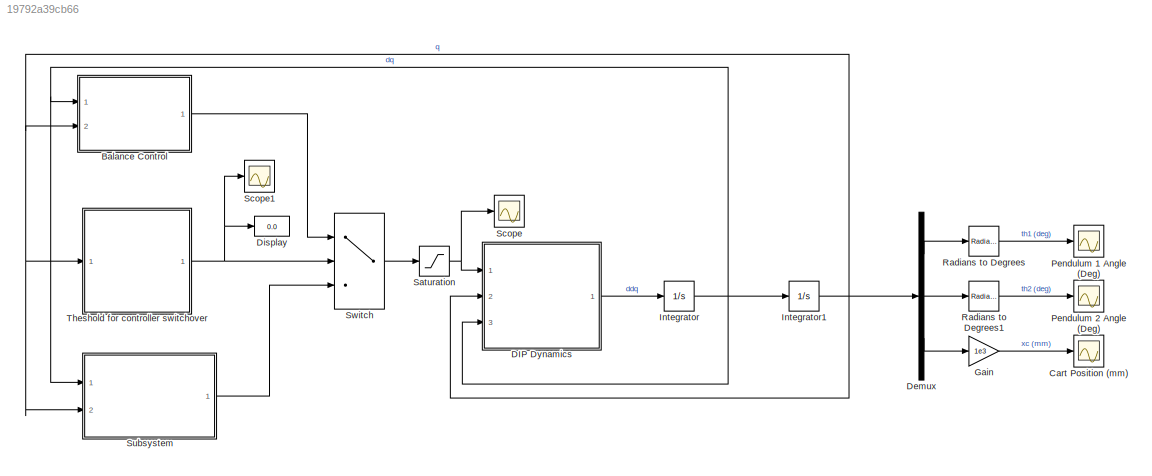
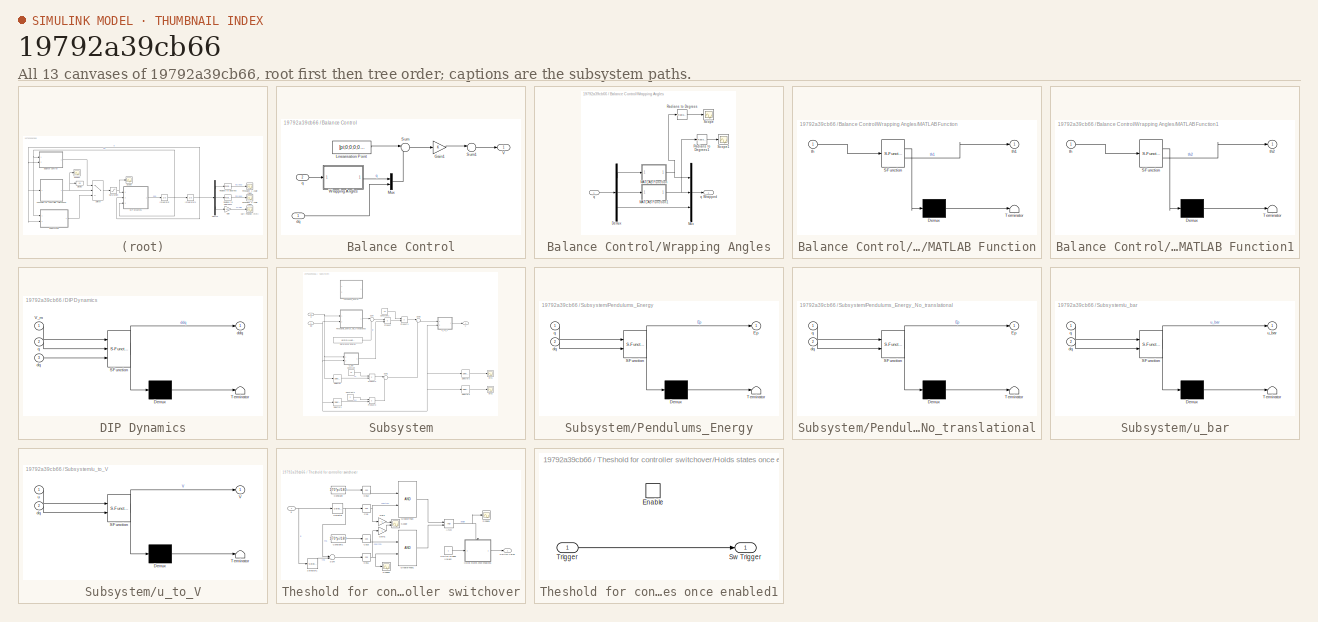
[diagram: thumbnail index - all 13 canvases of the model, root first then tree order]
MODEL slx_19792a39cb66
KIND model
CONFIG AbsTol = auto
CONFIG EnableMultiTasking = off
CONFIG FixedStep = 0.002
CONFIG MaxStep = auto
CONFIG MinStep = auto
CONFIG RelTol = 1e-3
CONFIG SampleTimeConstraint = Unconstrained
CONFIG SolverName = ode4
CONFIG StartTime = 0.0
CONFIG StopTime = 10
BLOCK [SubSystem] Balance Control
  Ports = [2, 1]
  RequestExecContextInheritance = off
BLOCK [Gain] Balance Control/Gain1
  Gain = K
  Multiplication = Matrix(K*u)
BLOCK [Constant] Balance Control/Linearisation Point
  Value = [pi;0;0;0;0;0]
BLOCK [Mux] Balance Control/Mux
  DisplayOption = bar
  Inputs = 2
  Ports = [2, 1]
BLOCK [Sum] Balance Control/Sum
  Inputs = |-+
  Ports = [2, 1]
BLOCK [Sum] Balance Control/Sum1
  Inputs = |-+
  Ports = [2, 1]
BLOCK [Outport] Balance Control/V
BLOCK [SubSystem] Balance Control/Wrapping Angles
  Ports = [1, 1]
  RequestExecContextInheritance = off
BLOCK [Demux] Balance Control/Wrapping Angles/Demux
  Outputs = 3
  Ports = [1, 3]
BLOCK [SubSystem] Balance Control/Wrapping Angles/MATLAB Function
  ErrorFcn = Stateflow.Translate.translate
  PermitHierarchicalResolution = ExplicitOnly
  Ports = [1, 1]
  RequestExecContextInheritance = off
  SFBlockType = MATLAB Function
  TreatAsAtomicUnit = on
BLOCK [Demux] Balance Control/Wrapping Angles/MATLAB Function/ Demux 
  Outputs = 1
  Ports = [1, 1]
BLOCK [S-Function] Balance Control/Wrapping Angles/MATLAB Function/ SFunction 
  EnableBusSupport = on
  FunctionName = sf_sfun
  PortCounts = [1 2]
  Ports = [1, 2]
  SFcnIsStateOwnerBlock = off
  SFunctionDeploymentMode = off
  Tag = Stateflow S-Function 5
BLOCK [Terminator] Balance Control/Wrapping Angles/MATLAB Function/ Terminator 
BLOCK [Inport] Balance Control/Wrapping Angles/MATLAB Function/th
BLOCK [Outport] Balance Control/Wrapping Angles/MATLAB Function/th1
BLOCK [SubSystem] Balance Control/Wrapping Angles/MATLAB Function1
  ErrorFcn = Stateflow.Translate.translate
  PermitHierarchicalResolution = ExplicitOnly
  Ports = [1, 1]
  RequestExecContextInheritance = off
  SFBlockType = MATLAB Function
  TreatAsAtomicUnit = on
BLOCK [Demux] Balance Control/Wrapping Angles/MATLAB Function1/ Demux 
  Outputs = 1
  Ports = [1, 1]
BLOCK [S-Function] Balance Control/Wrapping Angles/MATLAB Function1/ SFunction 
  EnableBusSupport = on
  FunctionName = sf_sfun
  PortCounts = [1 2]
  Ports = [1, 2]
  SFcnIsStateOwnerBlock = off
  SFunctionDeploymentMode = off
  Tag = Stateflow S-Function 6
BLOCK [Terminator] Balance Control/Wrapping Angles/MATLAB Function1/ Terminator 
BLOCK [Inport] Balance Control/Wrapping Angles/MATLAB Function1/th
BLOCK [Outport] Balance Control/Wrapping Angles/MATLAB Function1/th2
BLOCK [Mux] Balance Control/Wrapping Angles/Mux
  DisplayOption = bar
  Inputs = 3
  Ports = [3, 1]
BLOCK [Reference] Balance Control/Wrapping Angles/Radians to Degrees  REF=simulink_extras/Transformations/Radians
to Degrees
  Ports = [1, 1]
  SourceBlock = simulink_extras/Transformations/Radians\nto Degrees
  SourceProductBaseCode = SL
  SourceType = RadiansToDegrees
BLOCK [Reference] Balance Control/Wrapping Angles/Radians to Degrees1  REF=simulink_extras/Transformations/Radians
to Degrees
  Ports = [1, 1]
  SourceBlock = simulink_extras/Transformations/Radians\nto Degrees
  SourceProductBaseCode = SL
  SourceType = RadiansToDegrees
BLOCK [Scope] Balance Control/Wrapping Angles/Scope
  Floating = off
  NumInputPorts = 1
  Ports = [1]
  ScopeSpecificationString = Simulink.scopes.TimeScopeBlockCfg('CurrentConfiguration', extmgr.ConfigurationSet(extmgr.Configuration('Core','General UI',true),extmgr.Configuration('Core','Source UI',true),extmgr.Configuration('Sources','WiredSimulink',true,'DataLoggingVariableName','th1_W','DataLogging',true,'DataLoggingSaveFormat','Array'),extmgr.Configuration('Visuals','Time Domain',true,'SerializedDisplays',{struct('MinYLim...<+1460ch>
BLOCK [Scope] Balance Control/Wrapping Angles/Scope1
  Floating = off
  NumInputPorts = 1
  Ports = [1]
  ScopeSpecificationString = Simulink.scopes.TimeScopeBlockCfg('CurrentConfiguration', extmgr.ConfigurationSet(extmgr.Configuration('Core','General UI',true),extmgr.Configuration('Core','Source UI',true),extmgr.Configuration('Sources','WiredSimulink',true,'DataLoggingVariableName','th2_W','DataLogging',true,'DataLoggingSaveFormat','Array'),extmgr.Configuration('Visuals','Time Domain',true,'SerializedDisplays',{struct('MinYLim...<+1461ch>
BLOCK [Inport] Balance Control/Wrapping Angles/q
BLOCK [Outport] Balance Control/Wrapping Angles/q Wrapped
BLOCK [Inport] Balance Control/dq
BLOCK [Inport] Balance Control/q
  Port = 2
BLOCK [Scope] Cart Position (mm)
  Floating = off
  NumInputPorts = 1
  Ports = [1]
  ScopeSpecificationString = Simulink.scopes.TimeScopeBlockCfg('CurrentConfiguration', extmgr.ConfigurationSet(extmgr.Configuration('Core','General UI',true),extmgr.Configuration('Core','Source UI',true),extmgr.Configuration('Sources','WiredSimulink',true,'DataLoggingVariableName','xc_SIM','DataLogging',true,'DataLoggingSaveFormat','Array'),extmgr.Configuration('Visuals','Time Domain',true,'SerializedDisplays',{struct('MinYLi...<+1838ch>
BLOCK [SubSystem] DIP Dynamics
  ErrorFcn = Stateflow.Translate.translate
  PermitHierarchicalResolution = ExplicitOnly
  Ports = [3, 1]
  RequestExecContextInheritance = off
  SFBlockType = MATLAB Function
  TreatAsAtomicUnit = on
BLOCK [Demux] DIP Dynamics/ Demux 
  Outputs = 1
  Ports = [1, 1]
BLOCK [S-Function] DIP Dynamics/ SFunction 
  EnableBusSupport = on
  FunctionName = sf_sfun
  PortCounts = [3 2]
  Ports = [3, 2]
  SFcnIsStateOwnerBlock = off
  SFunctionDeploymentMode = off
  Tag = Stateflow S-Function 8
BLOCK [Terminator] DIP Dynamics/ Terminator 
BLOCK [Inport] DIP Dynamics/V_m
BLOCK [Outport] DIP Dynamics/ddq
BLOCK [Inport] DIP Dynamics/dq
  Port = 3
BLOCK [Inport] DIP Dynamics/q
  Port = 2
BLOCK [Demux] Demux
  Outputs = 3
  Ports = [1, 3]
BLOCK [Display] Display
  Decimation = 1
  Ports = [1]
BLOCK [Gain] Gain
  Gain = 1e3
BLOCK [Integrator] Integrator
  InitialCondition = [0 0 0]
  Ports = [1, 1]
BLOCK [Integrator] Integrator1
  InitialCondition = [5*pi/180 0*pi/180 0]
  Ports = [1, 1]
BLOCK [Scope] Pendulum 1 Angle (Deg)
  Floating = off
  NumInputPorts = 1
  Ports = [1]
  ScopeSpecificationString = Simulink.scopes.TimeScopeBlockCfg('CurrentConfiguration', extmgr.ConfigurationSet(extmgr.Configuration('Core','General UI',true),extmgr.Configuration('Core','Source UI',true),extmgr.Configuration('Sources','WiredSimulink',true,'DataLoggingVariableName','th1_SIM','DataLogging',true,'DataLoggingSaveFormat','Array'),extmgr.Configuration('Visuals','Time Domain',true,'SerializedDisplays',{struct('MinYL...<+1463ch>
BLOCK [Scope] Pendulum 2 Angle (Deg)
  Floating = off
  NumInputPorts = 1
  Ports = [1]
  ScopeSpecificationString = Simulink.scopes.TimeScopeBlockCfg('CurrentConfiguration', extmgr.ConfigurationSet(extmgr.Configuration('Core','General UI',true),extmgr.Configuration('Core','Source UI',true),extmgr.Configuration('Sources','WiredSimulink',true,'DataLogging',true,'DataLoggingVariableName','th2_SIM','DataLoggingSaveFormat','Array'),extmgr.Configuration('Visuals','Time Domain',true,'SerializedDisplays',{struct('MinYL...<+1486ch>
BLOCK [Reference] Radians to Degrees  REF=simulink_extras/Transformations/Radians
to Degrees
  Ports = [1, 1]
  SourceBlock = simulink_extras/Transformations/Radians\nto Degrees
  SourceProductBaseCode = SL
  SourceType = RadiansToDegrees
BLOCK [Reference] Radians to Degrees1  REF=simulink_extras/Transformations/Radians
to Degrees
  Ports = [1, 1]
  SourceBlock = simulink_extras/Transformations/Radians\nto Degrees
  SourceProductBaseCode = SL
  SourceType = RadiansToDegrees
BLOCK [Saturate] Saturation
  LowerLimit = -24
  UpperLimit = 24
BLOCK [Scope] Scope
  Floating = off
  NumInputPorts = 1
  Ports = [1]
  ScopeSpecificationString = Simulink.scopes.TimeScopeBlockCfg('CurrentConfiguration', extmgr.ConfigurationSet(extmgr.Configuration('Core','General UI',true),extmgr.Configuration('Core','Source UI',true),extmgr.Configuration('Sources','WiredSimulink',true,'DataLoggingVariableName','ScopeData11'),extmgr.Configuration('Visuals','Time Domain',true,'SerializedDisplays',{struct('MinYLimReal','-30.00000','MaxYLimReal','30.00000','Y...<+1376ch>
BLOCK [Scope] Scope1
  Floating = off
  NumInputPorts = 1
  Ports = [1]
  ScopeSpecificationString = Simulink.scopes.TimeScopeBlockCfg('CurrentConfiguration', extmgr.ConfigurationSet(extmgr.Configuration('Core','General UI',true),extmgr.Configuration('Core','Source UI',true),extmgr.Configuration('Sources','WiredSimulink',true,'DataLoggingVariableName','s_SIM','DataLogging',true,'DataLoggingSaveFormat','Array'),extmgr.Configuration('Visuals','Time Domain',true,'SerializedDisplays',{struct('MinYLim...<+1709ch>
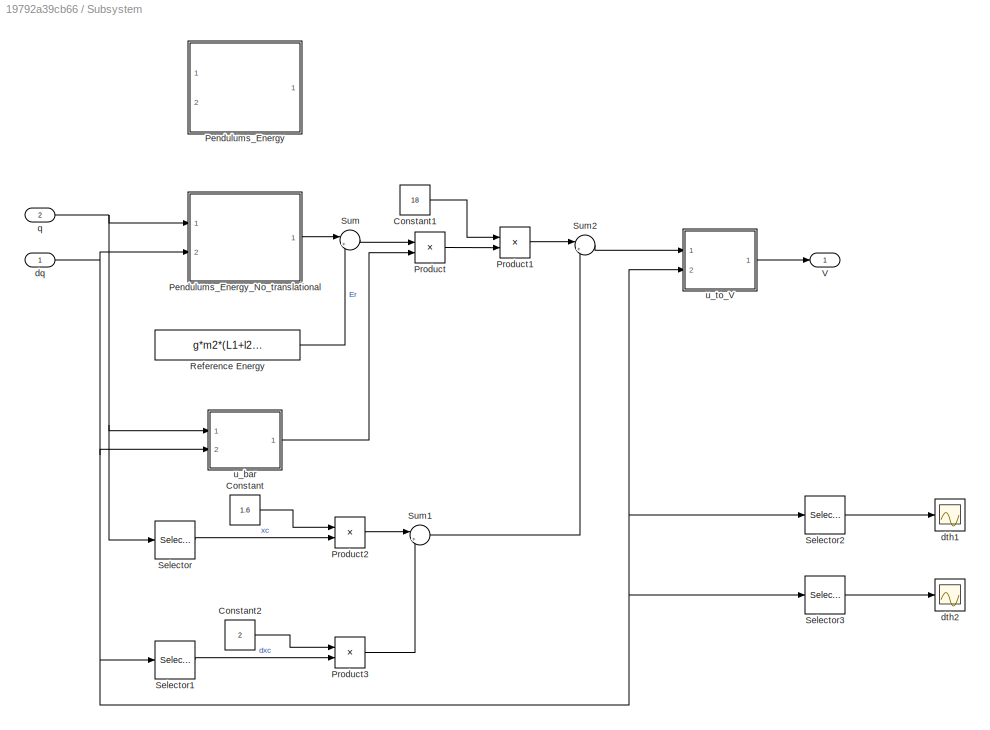
BLOCK [SubSystem] Subsystem
  Ports = [2, 1]
  RequestExecContextInheritance = off
BLOCK [Constant] Subsystem/Constant
  Value = 1.6
BLOCK [Constant] Subsystem/Constant1
  Value = 18
BLOCK [Constant] Subsystem/Constant2
  Value = 2
BLOCK [SubSystem] Subsystem/Pendulums_Energy
  Commented = on
  ErrorFcn = Stateflow.Translate.translate
  PermitHierarchicalResolution = ExplicitOnly
  Ports = [2, 1]
  RequestExecContextInheritance = off
  SFBlockType = MATLAB Function
  TreatAsAtomicUnit = on
BLOCK [Demux] Subsystem/Pendulums_Energy/ Demux 
  Outputs = 1
  Ports = [1, 1]
BLOCK [S-Function] Subsystem/Pendulums_Energy/ SFunction 
  EnableBusSupport = on
  FunctionName = sf_sfun
  PortCounts = [2 2]
  Ports = [2, 2]
  SFcnIsStateOwnerBlock = off
  SFunctionDeploymentMode = off
  Tag = Stateflow S-Function 2
BLOCK [Terminator] Subsystem/Pendulums_Energy/ Terminator 
BLOCK [Outport] Subsystem/Pendulums_Energy/Ep
BLOCK [Inport] Subsystem/Pendulums_Energy/dq
  Port = 2
BLOCK [Inport] Subsystem/Pendulums_Energy/q
BLOCK [SubSystem] Subsystem/Pendulums_Energy_No_translational
  ErrorFcn = Stateflow.Translate.translate
  PermitHierarchicalResolution = ExplicitOnly
  Ports = [2, 1]
  RequestExecContextInheritance = off
  SFBlockType = MATLAB Function
  TreatAsAtomicUnit = on
BLOCK [Demux] Subsystem/Pendulums_Energy_No_translational/ Demux 
  Outputs = 1
  Ports = [1, 1]
BLOCK [S-Function] Subsystem/Pendulums_Energy_No_translational/ SFunction 
  EnableBusSupport = on
  FunctionName = sf_sfun
  PortCounts = [2 2]
  Ports = [2, 2]
  SFcnIsStateOwnerBlock = off
  SFunctionDeploymentMode = off
  Tag = Stateflow S-Function 1
BLOCK [Terminator] Subsystem/Pendulums_Energy_No_translational/ Terminator 
BLOCK [Outport] Subsystem/Pendulums_Energy_No_translational/Ep
BLOCK [Inport] Subsystem/Pendulums_Energy_No_translational/dq
  Port = 2
BLOCK [Inport] Subsystem/Pendulums_Energy_No_translational/q
BLOCK [Product] Subsystem/Product
  Ports = [2, 1]
BLOCK [Product] Subsystem/Product1
  Ports = [2, 1]
BLOCK [Product] Subsystem/Product2
  Ports = [2, 1]
BLOCK [Product] Subsystem/Product3
  Ports = [2, 1]
BLOCK [Constant] Subsystem/Reference Energy
  Value = g*m2*(L1+l2)+g*m1*l1
BLOCK [Selector] Subsystem/Selector
  IndexOptions = Index vector (dialog)
  Indices = [3]
  InputPortWidth = 3
  OutputSizes = 1
  Ports = [1, 1]
BLOCK [Selector] Subsystem/Selector1
  IndexOptions = Index vector (dialog)
  Indices = [3]
  InputPortWidth = 3
  OutputSizes = 1
  Ports = [1, 1]
BLOCK [Selector] Subsystem/Selector2
  IndexOptions = Index vector (dialog)
  Indices = [1]
  InputPortWidth = 3
  OutputSizes = 1
  Ports = [1, 1]
BLOCK [Selector] Subsystem/Selector3
  IndexOptions = Index vector (dialog)
  Indices = [2]
  InputPortWidth = 3
  OutputSizes = 1
  Ports = [1, 1]
BLOCK [Sum] Subsystem/Sum
  Inputs = |+-
  Ports = [2, 1]
BLOCK [Sum] Subsystem/Sum1
  Inputs = |++
  Ports = [2, 1]
BLOCK [Sum] Subsystem/Sum2
  Inputs = |++
  Ports = [2, 1]
BLOCK [Outport] Subsystem/V
BLOCK [Inport] Subsystem/dq
BLOCK [Scope] Subsystem/dth1
  Floating = off
  NumInputPorts = 1
  Ports = [1]
  ScopeSpecificationString = Simulink.scopes.TimeScopeBlockCfg('CurrentConfiguration', extmgr.ConfigurationSet(extmgr.Configuration('Core','General UI',true),extmgr.Configuration('Core','Source UI',true),extmgr.Configuration('Sources','WiredSimulink',true,'DataLoggingVariableName','ScopeData6'),extmgr.Configuration('Visuals','Time Domain',true,'SerializedDisplays',{struct('MinYLimReal','-35.07389','MaxYLimReal','30.49021','YL...<+1404ch>
BLOCK [Scope] Subsystem/dth2
  Floating = off
  NumInputPorts = 1
  Ports = [1]
  ScopeSpecificationString = Simulink.scopes.TimeScopeBlockCfg('CurrentConfiguration', extmgr.ConfigurationSet(extmgr.Configuration('Core','General UI',true),extmgr.Configuration('Core','Source UI',true),extmgr.Configuration('Sources','WiredSimulink',true,'DataLoggingVariableName','ScopeData7'),extmgr.Configuration('Visuals','Time Domain',true,'SerializedDisplays',{struct('MinYLimReal','-53.98252','MaxYLimReal','56.97296','YL...<+1405ch>
BLOCK [Inport] Subsystem/q
  Port = 2
BLOCK [SubSystem] Subsystem/u_bar
  ErrorFcn = Stateflow.Translate.translate
  PermitHierarchicalResolution = ExplicitOnly
  Ports = [2, 1]
  RequestExecContextInheritance = off
  SFBlockType = MATLAB Function
  TreatAsAtomicUnit = on
BLOCK [Demux] Subsystem/u_bar/ Demux 
  Outputs = 1
  Ports = [1, 1]
BLOCK [S-Function] Subsystem/u_bar/ SFunction 
  EnableBusSupport = on
  FunctionName = sf_sfun
  PortCounts = [2 2]
  Ports = [2, 2]
  SFcnIsStateOwnerBlock = off
  SFunctionDeploymentMode = off
  Tag = Stateflow S-Function 3
BLOCK [Terminator] Subsystem/u_bar/ Terminator 
BLOCK [Inport] Subsystem/u_bar/dq
  Port = 2
BLOCK [Inport] Subsystem/u_bar/q
BLOCK [Outport] Subsystem/u_bar/u_bar
BLOCK [SubSystem] Subsystem/u_to_V
  ErrorFcn = Stateflow.Translate.translate
  PermitHierarchicalResolution = ExplicitOnly
  Ports = [2, 1]
  RequestExecContextInheritance = off
  SFBlockType = MATLAB Function
  TreatAsAtomicUnit = on
BLOCK [Demux] Subsystem/u_to_V/ Demux 
  Outputs = 1
  Ports = [1, 1]
BLOCK [S-Function] Subsystem/u_to_V/ SFunction 
  EnableBusSupport = on
  FunctionName = sf_sfun
  PortCounts = [2 2]
  Ports = [2, 2]
  SFcnIsStateOwnerBlock = off
  SFunctionDeploymentMode = off
  Tag = Stateflow S-Function 4
BLOCK [Terminator] Subsystem/u_to_V/ Terminator 
BLOCK [Outport] Subsystem/u_to_V/V
BLOCK [Inport] Subsystem/u_to_V/dq
  Port = 2
BLOCK [Inport] Subsystem/u_to_V/u
BLOCK [Switch] Switch
  Criteria = u2 > Threshold
  InputSameDT = off
  SaturateOnIntegerOverflow = off
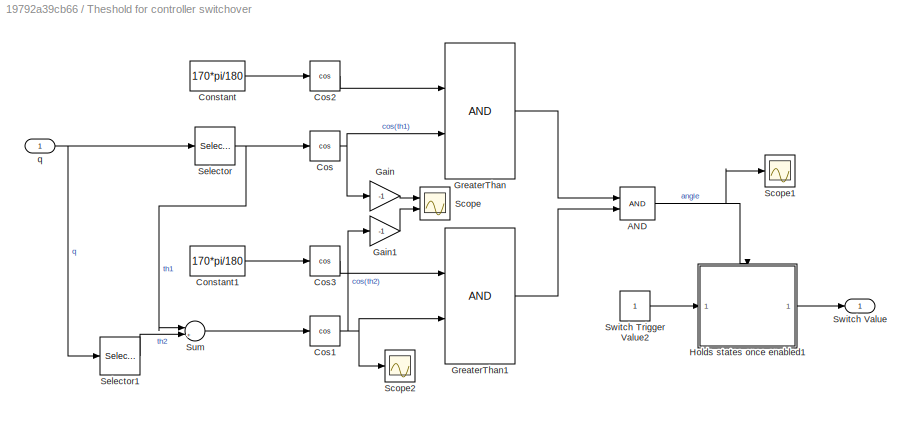
BLOCK [SubSystem] Theshold for controller switchover
  Ports = [1, 1]
  RequestExecContextInheritance = off
BLOCK [Logic] Theshold for controller switchover/AND
  AllPortsSameDT = off
  OutDataTypeStr = boolean
  Ports = [2, 1]
BLOCK [Constant] Theshold for controller switchover/Constant
  Value = 170*pi/180
BLOCK [Constant] Theshold for controller switchover/Constant1
  Value = 170*pi/180
BLOCK [Trigonometry] Theshold for controller switchover/Cos
  Operator = cos
  Ports = [1, 1]
BLOCK [Trigonometry] Theshold for controller switchover/Cos1
  Operator = cos
  Ports = [1, 1]
BLOCK [Trigonometry] Theshold for controller switchover/Cos2
  Operator = cos
  Ports = [1, 1]
BLOCK [Trigonometry] Theshold for controller switchover/Cos3
  Operator = cos
  Ports = [1, 1]
BLOCK [Gain] Theshold for controller switchover/Gain
  Gain = -1
BLOCK [Gain] Theshold for controller switchover/Gain1
  Gain = -1
BLOCK [RelationalOperator] Theshold for controller switchover/GreaterThan
  InputSameDT = off
  OutDataTypeStr = boolean
  Ports = [2, 1]
  RndMeth = Simplest
BLOCK [RelationalOperator] Theshold for controller switchover/GreaterThan1
  InputSameDT = off
  OutDataTypeStr = boolean
  Ports = [2, 1]
  RndMeth = Simplest
BLOCK [SubSystem] Theshold for controller switchover/Holds states once enabled1
  Ports = [1, 1, 1]
  RequestExecContextInheritance = off
  TreatAsAtomicUnit = on
BLOCK [EnablePort] Theshold for controller switchover/Holds states once enabled1/Enable
  Ports = []
BLOCK [Outport] Theshold for controller switchover/Holds states once enabled1/Sw Trigger
  InitialOutput = [0]
  OutDataTypeStr = double
BLOCK [Inport] Theshold for controller switchover/Holds states once enabled1/Trigger
  OutDataTypeStr = double
BLOCK [Scope] Theshold for controller switchover/Scope
  Floating = off
  NumInputPorts = 2
  Ports = [2]
  ScopeSpecificationString = Simulink.scopes.TimeScopeBlockCfg('CurrentConfiguration', extmgr.ConfigurationSet(extmgr.Configuration('Core','General UI',true),extmgr.Configuration('Core','Source UI',true),extmgr.Configuration('Sources','WiredSimulink',true,'DataLoggingVariableName','ScopeData3'),extmgr.Configuration('Visuals','Time Domain',true,'SerializedDisplays',{struct('MinYLimReal','-1.25','MaxYLimReal','1.25','YLabelReal...<+1427ch>
BLOCK [Scope] Theshold for controller switchover/Scope1
  Floating = off
  NumInputPorts = 1
  Ports = [1]
  ScopeSpecificationString = Simulink.scopes.TimeScopeBlockCfg('CurrentConfiguration', extmgr.ConfigurationSet(extmgr.Configuration('Core','General UI',true),extmgr.Configuration('Core','Source UI',true),extmgr.Configuration('Sources','WiredSimulink',true,'DataLoggingVariableName','ScopeData4'),extmgr.Configuration('Visuals','Time Domain',true),extmgr.Configuration('Tools','Plot Navigation',true),extmgr.Configuration('Tools',...<+40ch>
BLOCK [Scope] Theshold for controller switchover/Scope2
  Floating = off
  NumInputPorts = 1
  Ports = [1]
  ScopeSpecificationString = Simulink.scopes.TimeScopeBlockCfg('CurrentConfiguration', extmgr.ConfigurationSet(extmgr.Configuration('Core','General UI',true),extmgr.Configuration('Core','Source UI',true),extmgr.Configuration('Sources','WiredSimulink',true,'DataLoggingVariableName','ScopeData5'),extmgr.Configuration('Visuals','Time Domain',true,'SerializedDisplays',{struct('MinYLimReal','-1.25','MaxYLimReal','1.25','YLabelReal...<+1378ch>
BLOCK [Selector] Theshold for controller switchover/Selector
  IndexOptions = Index vector (dialog)
  Indices = [1]
  InputPortWidth = 3
  OutputSizes = 1
  Ports = [1, 1]
BLOCK [Selector] Theshold for controller switchover/Selector1
  IndexOptions = Index vector (dialog)
  Indices = [2]
  InputPortWidth = 3
  OutputSizes = 1
  Ports = [1, 1]
BLOCK [Sum] Theshold for controller switchover/Sum
  Inputs = |++
  Ports = [2, 1]
BLOCK [Constant] Theshold for controller switchover/Switch Trigger Value2
BLOCK [Outport] Theshold for controller switchover/Switch Value
BLOCK [Inport] Theshold for controller switchover/q
LINE Balance Control/Gain1:1 -> Balance Control/Sum1:1
LINE Balance Control/Linearisation Point:1 -> Balance Control/Sum:1
LINE Balance Control/Mux:1 -> Balance Control/Sum:2
LINE Balance Control/Sum1:1 -> Balance Control/V:1
LINE Balance Control/Sum:1 -> Balance Control/Gain1:1
LINE Balance Control/Wrapping Angles/Demux:1 -> Balance Control/Wrapping Angles/MATLAB Function:1
LINE Balance Control/Wrapping Angles/Demux:2 -> Balance Control/Wrapping Angles/MATLAB Function1:1
LINE Balance Control/Wrapping Angles/Demux:3 -> Balance Control/Wrapping Angles/Mux:3
NET Balance Control/Wrapping Angles/MATLAB Function1:1 -> Balance Control/Wrapping Angles/Mux:2, Balance Control/Wrapping Angles/Radians to Degrees1:1
NET Balance Control/Wrapping Angles/MATLAB Function:1 -> Balance Control/Wrapping Angles/Mux:1, Balance Control/Wrapping Angles/Radians to Degrees:1
LINE Balance Control/Wrapping Angles/Mux:1 -> Balance Control/Wrapping Angles/q Wrapped:1
LINE Balance Control/Wrapping Angles/Radians to Degrees1:1 -> Balance Control/Wrapping Angles/Scope1:1
LINE Balance Control/Wrapping Angles/Radians to Degrees:1 -> Balance Control/Wrapping Angles/Scope:1
LINE Balance Control/Wrapping Angles/q:1 -> Balance Control/Wrapping Angles/Demux:1
LINE Balance Control/Wrapping Angles:1 -> Balance Control/Mux:1
LINE Balance Control/dq:1 -> Balance Control/Mux:2
LINE Balance Control/q:1 -> Balance Control/Wrapping Angles:1
LINE Balance Control:1 -> Switch:1
LINE DIP Dynamics:1 -> Integrator:1
LINE Demux:1 -> Radians to Degrees:1
LINE Demux:2 -> Radians to Degrees1:1
LINE Demux:3 -> Gain:1
LINE Gain:1 -> Cart Position (mm):1
NET Integrator1:1 -> Balance Control:2, DIP Dynamics:2, Demux:1, Subsystem:2, Theshold for controller switchover:1
NET Integrator:1 -> Balance Control:1, DIP Dynamics:3, Integrator1:1, Subsystem:1
LINE Radians to Degrees1:1 -> Pendulum 2 Angle (Deg):1
LINE Radians to Degrees:1 -> Pendulum 1 Angle (Deg):1
NET Saturation:1 -> DIP Dynamics:1, Scope:1
LINE Subsystem/Constant1:1 -> Subsystem/Product1:1
LINE Subsystem/Constant2:1 -> Subsystem/Product3:1
LINE Subsystem/Constant:1 -> Subsystem/Product2:1
LINE Subsystem/Pendulums_Energy_No_translational:1 -> Subsystem/Sum:1
LINE Subsystem/Product1:1 -> Subsystem/Sum2:1
LINE Subsystem/Product2:1 -> Subsystem/Sum1:1
LINE Subsystem/Product3:1 -> Subsystem/Sum1:2
LINE Subsystem/Product:1 -> Subsystem/Product1:2
LINE Subsystem/Reference Energy:1 -> Subsystem/Sum:2
LINE Subsystem/Selector1:1 -> Subsystem/Product3:2
LINE Subsystem/Selector2:1 -> Subsystem/dth1:1
LINE Subsystem/Selector3:1 -> Subsystem/dth2:1
LINE Subsystem/Selector:1 -> Subsystem/Product2:2
LINE Subsystem/Sum1:1 -> Subsystem/Sum2:2
LINE Subsystem/Sum2:1 -> Subsystem/u_to_V:1
LINE Subsystem/Sum:1 -> Subsystem/Product:1
NET Subsystem/dq:1 -> Subsystem/Pendulums_Energy_No_translational:2, Subsystem/Selector1:1, Subsystem/Selector2:1, Subsystem/Selector3:1, Subsystem/u_bar:2, Subsystem/u_to_V:2
NET Subsystem/q:1 -> Subsystem/Pendulums_Energy_No_translational:1, Subsystem/Selector:1, Subsystem/u_bar:1
LINE Subsystem/u_bar:1 -> Subsystem/Product:2
LINE Subsystem/u_to_V:1 -> Subsystem/V:1
LINE Subsystem:1 -> Switch:3
LINE Switch:1 -> Saturation:1
NET Theshold for controller switchover/AND:1 -> Theshold for controller switchover/Holds states once enabled1:enable, Theshold for controller switchover/Scope1:1
LINE Theshold for controller switchover/Constant1:1 -> Theshold for controller switchover/Cos3:1
LINE Theshold for controller switchover/Constant:1 -> Theshold for controller switchover/Cos2:1
NET Theshold for controller switchover/Cos1:1 -> Theshold for controller switchover/Gain1:1, Theshold for controller switchover/GreaterThan1:2, Theshold for controller switchover/Scope2:1
LINE Theshold for controller switchover/Cos2:1 -> Theshold for controller switchover/GreaterThan:1
LINE Theshold for controller switchover/Cos3:1 -> Theshold for controller switchover/GreaterThan1:1
NET Theshold for controller switchover/Cos:1 -> Theshold for controller switchover/Gain:1, Theshold for controller switchover/GreaterThan:2
LINE Theshold for controller switchover/Gain1:1 -> Theshold for controller switchover/Scope:2
LINE Theshold for controller switchover/Gain:1 -> Theshold for controller switchover/Scope:1
LINE Theshold for controller switchover/GreaterThan1:1 -> Theshold for controller switchover/AND:2
LINE Theshold for controller switchover/GreaterThan:1 -> Theshold for controller switchover/AND:1
LINE Theshold for controller switchover/Holds states once enabled1/Trigger:1 -> Theshold for controller switchover/Holds states once enabled1/Sw Trigger:1
LINE Theshold for controller switchover/Holds states once enabled1:1 -> Theshold for controller switchover/Switch Value:1
LINE Theshold for controller switchover/Selector1:1 -> Theshold for controller switchover/Sum:2
NET Theshold for controller switchover/Selector:1 -> Theshold for controller switchover/Cos:1, Theshold for controller switchover/Sum:1
LINE Theshold for controller switchover/Sum:1 -> Theshold for controller switchover/Cos1:1
LINE Theshold for controller switchover/Switch Trigger Value2:1 -> Theshold for controller switchover/Holds states once enabled1:1
NET Theshold for controller switchover/q:1 -> Theshold for controller switchover/Selector1:1, Theshold for controller switchover/Selector:1
NET Theshold for controller switchover:1 -> Display:1, Scope1:1, Switch:2
note: NET lines group one-source signal fan-out (src -> all destinations, sorted); 1:1 wires keep LINE
CHART Subsystem/Pendulums_Energy_No_translational states=1 transitions=1
  STATE_LABEL 'eML_blk_kernel()'
  STATE_LABEL 'SCRIPT:\nfunction Ep = Pendulums_Energy_No_translational(q,dq)\n%#codegen\n\n%    This function was generated by the Symbolic Math Toolbox version 8.7.\n%    31-Oct-2022 16:44:23\n\nth1 = q(1);\nth2 = q(2);\ndth1 = dq(1);\ndth2 = dq(2);\n\ng = 9.81;\nl1 = 0.1483;\nL1 = 0.2096;\nl2 = 0.1778;\nm1 = 0.25244;\nm2 = 0.10562;\nJ1 = 0.0011;\nJ2 = 8.2572e-04;\n\nt2 = cos(th1);\nEp = (J1.*dth1.^2)./2.0-g.*m2.*(L1.*t2+l2.*cos(th...<+62ch>'
CHART Subsystem/Pendulums_Energy states=1 transitions=1
  STATE_LABEL 'eML_blk_kernel()'
  STATE_LABEL 'SCRIPT:\nfunction Ep = Pendulums_Energy(q,dq)\n%#codegen\n\n%    This function was generated by the Symbolic Math Toolbox version 8.7.\n%    31-Oct-2022 14:17:52\n\nth1 = q(1);\nth2 = q(2);\ndth1 = dq(1);\ndth2 = dq(2);\n\ng = 9.81;\nl1 = 0.1483;\nL1 = 0.2096;\nl2 = 0.1778;\nm1 = 0.25244;\nm2 = 0.10562;\nJ1 = 0.0011;\nJ2 = 8.2572e-04;\n\nt2 = cos(th1);\nt3 = cos(th2);\nt4 = dth1.^2;\nt5 = dth2.^2;\nt6 = l2.^2;\nEp = (J1.*t...<+271ch>'
CHART Subsystem/u_bar states=1 transitions=1
  STATE_LABEL 'eML_blk_kernel()'
  STATE_LABEL 'SCRIPT:\nfunction u_bar = u_bar(q,dq)\n%#codegen\n\n%    This function was generated by the Symbolic Math Toolbox version 8.7.\n%    31-Oct-2022 18:22:34\n\nth1 = q(1);\nth2 = q(2);\ndth1 = dq(1);\ndth2 = dq(2);\n\nl1 = 0.1483;\nL1 = 0.2096;\nl2 = 0.1778;\nm1 = 0.25244;\nm2 = 0.10562;\n\nt2 = cos(th1);\nt3 = th1+th2;\nt4 = cos(t3);\nu_bar = dth1.*l1.*m1.*t2+dth1.*l2.*m2.*t4+dth2.*l2.*m2.*t4+L1.*dth1.*m2.*t2;\n'
CHART Subsystem/u_to_V states=1 transitions=1
  STATE_LABEL 'eML_blk_kernel()'
  STATE_LABEL 'SCRIPT:\nfunction V = u_to_V(u,dq)\n%#codegen\n\n%    This function was generated by the Symbolic Math Toolbox version 8.7.\n%    31-Oct-2022 18:30:42\n\ndx = dq(3);\nmc = 0.57;\n\nR_m = 2.6; \nk_t = 0.00767;\nn_m = 1;\nk_m = 0.00767;\nK_g = 3.71;\nn_g = 1;\nr_mp = 6.35*10^(-3);\n\nV = (K_g.*dx.*k_m)./r_mp+(R_m.*mc.*r_mp.*u)./(K_g.*k_t.*n_g.*n_m);\n'
CHART Balance Control/Wrapping Angles/MATLAB Function states=1 transitions=1
  STATE_LABEL 'eML_blk_kernel()'
  STATE_LABEL 'SCRIPT:\nfunction th1 = wrapth(th)\n\nth1 = wrapTo2Pi(th);\n'
CHART Balance Control/Wrapping Angles/MATLAB Function1 states=1 transitions=1
  STATE_LABEL 'eML_blk_kernel()'
  STATE_LABEL 'SCRIPT:\nfunction th2 = wrapth(th)\n\nth2 = wrapToPi(th);\n'
CHART DIP Dynamics states=1 transitions=1
  STATE_LABEL 'eML_blk_kernel()'
  STATE_LABEL 'SCRIPT:\nfunction ddq = Dynamics(V_m,q,dq)\n%#codegen\n\n%    This function was generated by the Symbolic Math Toolbox version 8.7.\n%    26-Sep-2022 15:32:26\n\nBc = 9.3378;\nBp1 = 5.6134e-04;\nBp2 = 4.2362e-04;\nCp1 = 0;\nCp2 = 0;\nJ1 = 0.0011;\nJ2 = 8.25272e-04;\n\nsgn1 = 0;\nsgn2 = 0;\n\nth1 = q(1);\nth2 = q(2);\n\ndth1 = dq(1);\ndth2 = dq(2);\ndx = dq(3);\n\nif dth1 > 0\n    sgn1 = 1;\nelseif dth1 == 0\n    sgn1 = 0;\nel...<+3608ch>'
CHART  states=0 transitions=0
CHART  states=0 transitions=0
CHART  states=0 transitions=0
CHART  states=0 transitions=0
CHART  states=0 transitions=0
CHART  states=0 transitions=0
CHART  states=0 transitions=0
